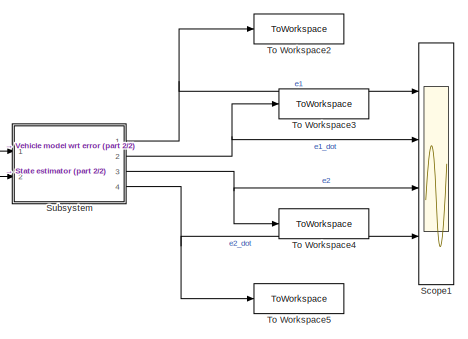
[diagram: root canvas - part 1/2, middle right region]
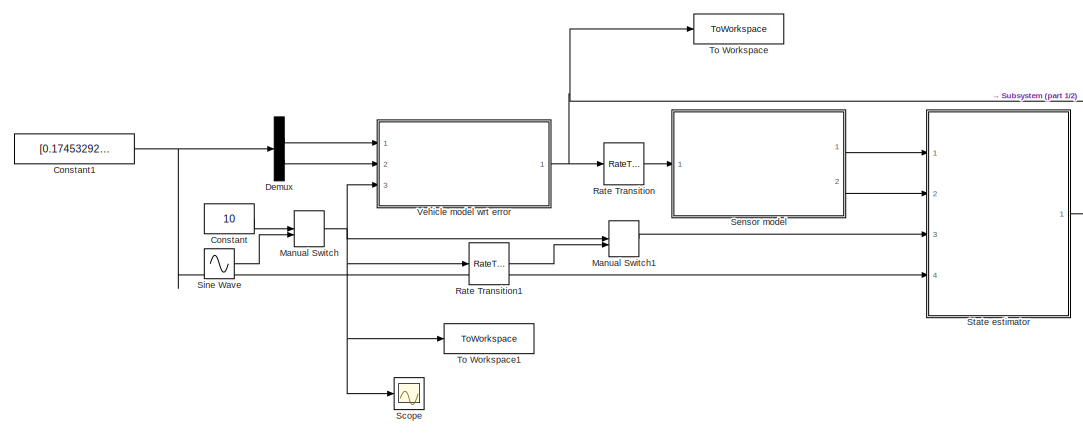
[diagram: root canvas - part 2/2, center side, full height]
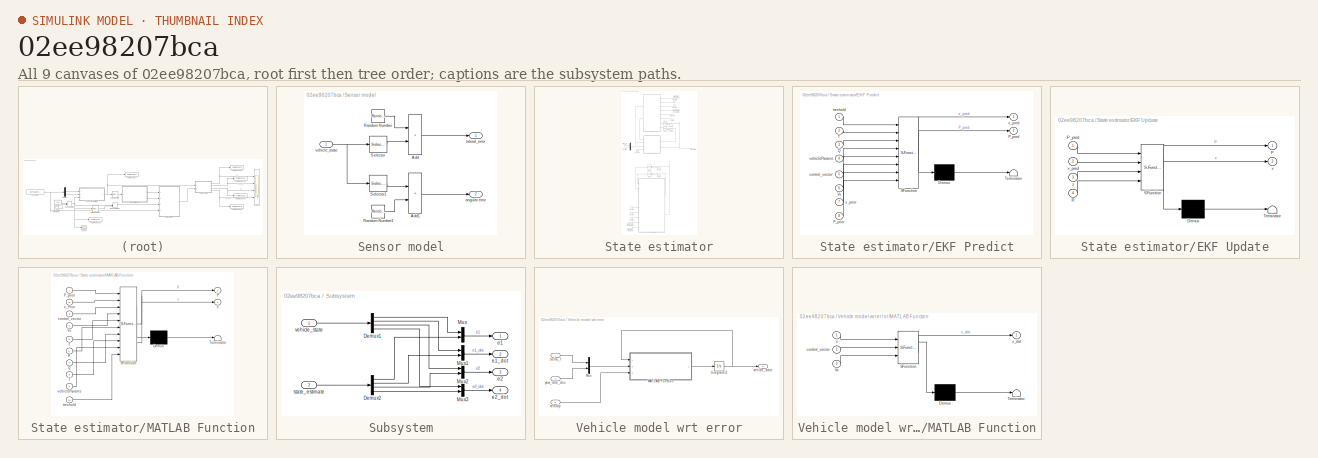
[diagram: thumbnail index - all 9 canvases of the model, root first then tree order]
MODEL slx_02ee98207bca
KIND model
CONFIG AbsTol = auto
CONFIG EnableMultiTasking = off
CONFIG FixedStep = auto
CONFIG MaxStep = auto
CONFIG MinStep = auto
CONFIG RelTol = 1e-3
CONFIG SampleTimeConstraint = Unconstrained
CONFIG SolverName = VariableStepAuto
CONFIG StartTime = 0.0
CONFIG StopTime = 5
BLOCK [Constant] Constant
  Value = 10
BLOCK [Constant] Constant1
  Value = [0.1745329252; 1]
BLOCK [Demux] Demux
  Outputs = 2
  Ports = [1, 2]
BLOCK [ManualSwitch] Manual Switch
BLOCK [ManualSwitch] Manual Switch1
BLOCK [RateTransition] Rate Transition
  OutPortSampleTime = T
BLOCK [RateTransition] Rate Transition1
  OutPortSampleTime = T
BLOCK [Scope] Scope
  Floating = off
  NumInputPorts = 1
  Ports = [1]
  ScopeSpecificationString = Simulink.scopes.TimeScopeBlockCfg('CurrentConfiguration', extmgr.ConfigurationSet(extmgr.Configuration('Core','General UI',true),extmgr.Configuration('Core','Source UI',true),extmgr.Configuration('Sources','WiredSimulink',true,'DataLoggingVariableName','ScopeData1'),extmgr.Configuration('Visuals','Time Domain',true,'SerializedDisplays',{struct('MinYLimReal','0.009','MaxYLimReal','0.011','YLabelRea...<+1408ch>
BLOCK [Scope] Scope1
  Floating = off
  NumInputPorts = 4
  Ports = [4]
  ScopeSpecificationString = Simulink.scopes.TimeScopeBlockCfg('CurrentConfiguration', extmgr.ConfigurationSet(extmgr.Configuration('Core','General UI',true),extmgr.Configuration('Core','Source UI',true),extmgr.Configuration('Sources','WiredSimulink',true,'DataLoggingVariableName','ScopeData1'),extmgr.Configuration('Visuals','Time Domain',true,'SerializedDisplays',{struct('MinYLimReal','-1.35053','MaxYLimReal','0.21478','YLab...<+3512ch>
BLOCK [SubSystem] Sensor model
  Ports = [1, 2]
  RequestExecContextInheritance = off
BLOCK [Sum] Sensor model/Add
  IconShape = rectangular
  Ports = [2, 1]
BLOCK [Sum] Sensor model/Add1
  IconShape = rectangular
  Ports = [2, 1]
BLOCK [RandomNumber] Sensor model/Random Number
  SampleTime = T
  Variance = e1_noise_std^2
BLOCK [RandomNumber] Sensor model/Random Number1
  SampleTime = T
  Seed = 1
  Variance = e2_noise_std^2
BLOCK [Selector] Sensor model/Selector
  IndexOptions = Index vector (dialog)
  Indices = 1
  InputPortWidth = 4
  OutputSizes = 1
  Ports = [1, 1]
BLOCK [Selector] Sensor model/Selector1
  IndexOptions = Index vector (dialog)
  Indices = 3
  InputPortWidth = 4
  OutputSizes = 1
  Ports = [1, 1]
BLOCK [Outport] Sensor model/angular error
  Port = 2
BLOCK [Outport] Sensor model/lateral_error
BLOCK [Inport] Sensor model/vehicle_state
BLOCK [Sin] Sine Wave
  Amplitude = 0.5
  Bias = 1.5
  Frequency = 3
  Phase = -pi/2
  Ports = [0, 1]
  SampleTime = 0
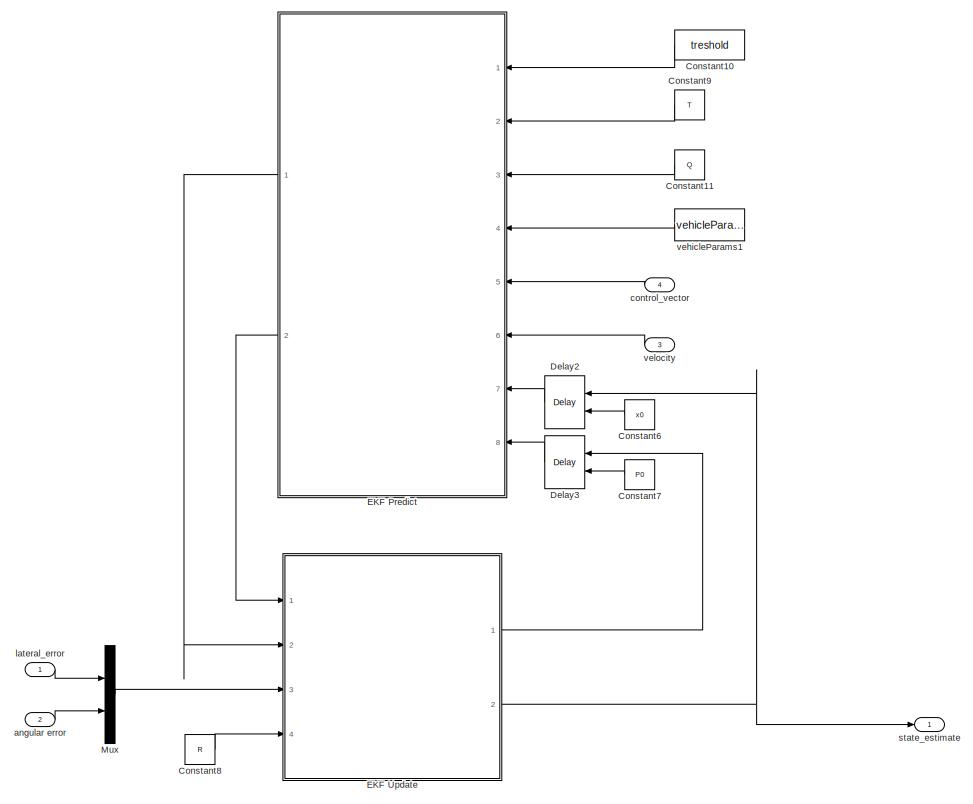
[diagram: State estimator - part 1/2, full width, top band]
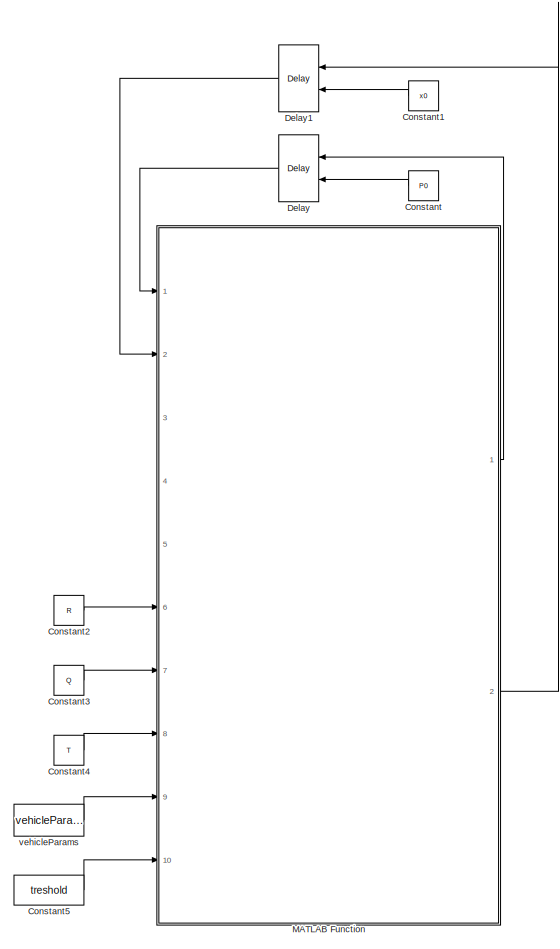
[diagram: State estimator - part 2/2, bottom center region]
BLOCK [SubSystem] State estimator
  Ports = [4, 1]
  RequestExecContextInheritance = off
BLOCK [Constant] State estimator/Constant
  Commented = on
  Value = P0
BLOCK [Constant] State estimator/Constant1
  Commented = on
  Value = x0
BLOCK [Constant] State estimator/Constant10
  Value = treshold
BLOCK [Constant] State estimator/Constant11
  Value = Q
BLOCK [Constant] State estimator/Constant2
  Commented = on
  Value = R
BLOCK [Constant] State estimator/Constant3
  Commented = on
  Value = Q
BLOCK [Constant] State estimator/Constant4
  Commented = on
  Value = T
BLOCK [Constant] State estimator/Constant5
  Commented = on
  Value = treshold
BLOCK [Constant] State estimator/Constant6
  Value = x0
BLOCK [Constant] State estimator/Constant7
  Value = P0
BLOCK [Constant] State estimator/Constant8
  Value = R
BLOCK [Constant] State estimator/Constant9
  Value = T
BLOCK [Delay] State estimator/Delay
  Commented = on
  DelayLength = 1
  InitialConditionSource = Input port
  InputPortMap = u0,p4
  Ports = [2, 1]
BLOCK [Delay] State estimator/Delay1
  Commented = on
  DelayLength = 1
  InitialConditionSource = Input port
  InputPortMap = u0,p4
  Ports = [2, 1]
BLOCK [Delay] State estimator/Delay2
  DelayLength = 1
  InitialConditionSource = Input port
  InputPortMap = u0,p4
  Ports = [2, 1]
  SampleTime = T
BLOCK [Delay] State estimator/Delay3
  DelayLength = 1
  InitialConditionSource = Input port
  InputPortMap = u0,p4
  Ports = [2, 1]
  SampleTime = T
BLOCK [SubSystem] State estimator/EKF Predict
  ErrorFcn = Stateflow.Translate.translate
  PermitHierarchicalResolution = ExplicitOnly
  Ports = [8, 2]
  RequestExecContextInheritance = off
  SFBlockType = MATLAB Function
  TreatAsAtomicUnit = on
BLOCK [Demux] State estimator/EKF Predict/ Demux 
  Outputs = 1
  Ports = [1, 1]
BLOCK [S-Function] State estimator/EKF Predict/ SFunction 
  EnableBusSupport = on
  FunctionName = sf_sfun
  PortCounts = [8 3]
  Ports = [8, 3]
  SFcnIsStateOwnerBlock = off
  SFunctionDeploymentMode = off
  Tag = Stateflow S-Function 1
BLOCK [Terminator] State estimator/EKF Predict/ Terminator 
BLOCK [Outport] State estimator/EKF Predict/P_pred
  Port = 2
BLOCK [Inport] State estimator/EKF Predict/P_prior
  Port = 8
BLOCK [Inport] State estimator/EKF Predict/Q
  Port = 3
BLOCK [Inport] State estimator/EKF Predict/T
  Port = 2
BLOCK [Inport] State estimator/EKF Predict/Vx
  Port = 6
BLOCK [Inport] State estimator/EKF Predict/control_vector
  Port = 5
BLOCK [Inport] State estimator/EKF Predict/treshold
BLOCK [Inport] State estimator/EKF Predict/vehicleParams
  Port = 4
BLOCK [Outport] State estimator/EKF Predict/x_pred
BLOCK [Inport] State estimator/EKF Predict/x_prior
  Port = 7
BLOCK [SubSystem] State estimator/EKF Update
  ErrorFcn = Stateflow.Translate.translate
  PermitHierarchicalResolution = ExplicitOnly
  Ports = [4, 2]
  RequestExecContextInheritance = off
  SFBlockType = MATLAB Function
  TreatAsAtomicUnit = on
BLOCK [Demux] State estimator/EKF Update/ Demux 
  Outputs = 1
  Ports = [1, 1]
BLOCK [S-Function] State estimator/EKF Update/ SFunction 
  EnableBusSupport = on
  FunctionName = sf_sfun
  PortCounts = [4 3]
  Ports = [4, 3]
  SFcnIsStateOwnerBlock = off
  SFunctionDeploymentMode = off
  Tag = Stateflow S-Function 2
BLOCK [Terminator] State estimator/EKF Update/ Terminator 
BLOCK [Outport] State estimator/EKF Update/P
BLOCK [Inport] State estimator/EKF Update/P_pred
BLOCK [Inport] State estimator/EKF Update/R
  Port = 4
BLOCK [Outport] State estimator/EKF Update/x
  Port = 2
BLOCK [Inport] State estimator/EKF Update/x_pred
  Port = 2
BLOCK [Inport] State estimator/EKF Update/z
  Port = 3
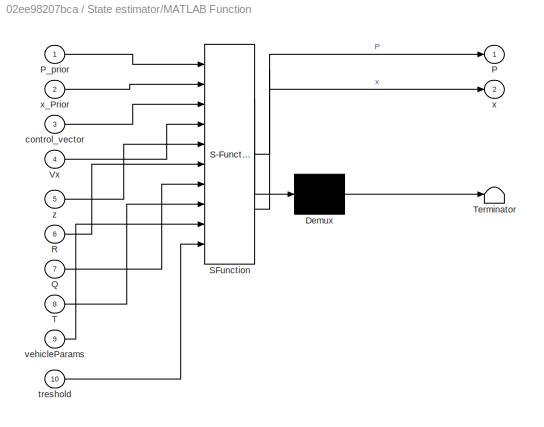
BLOCK [SubSystem] State estimator/MATLAB Function
  Commented = on
  ErrorFcn = Stateflow.Translate.translate
  PermitHierarchicalResolution = ExplicitOnly
  Ports = [10, 2]
  RequestExecContextInheritance = off
  SFBlockType = MATLAB Function
  TreatAsAtomicUnit = on
BLOCK [Demux] State estimator/MATLAB Function/ Demux 
  Outputs = 1
  Ports = [1, 1]
BLOCK [S-Function] State estimator/MATLAB Function/ SFunction 
  EnableBusSupport = on
  FunctionName = sf_sfun
  PortCounts = [10 3]
  Ports = [10, 3]
  SFcnIsStateOwnerBlock = off
  SFunctionDeploymentMode = off
  Tag = Stateflow S-Function 5
BLOCK [Terminator] State estimator/MATLAB Function/ Terminator 
BLOCK [Outport] State estimator/MATLAB Function/P
BLOCK [Inport] State estimator/MATLAB Function/P_prior
BLOCK [Inport] State estimator/MATLAB Function/Q
  Port = 7
BLOCK [Inport] State estimator/MATLAB Function/R
  Port = 6
BLOCK [Inport] State estimator/MATLAB Function/T
  Port = 8
BLOCK [Inport] State estimator/MATLAB Function/Vx
  Port = 4
BLOCK [Inport] State estimator/MATLAB Function/control_vector
  Port = 3
BLOCK [Inport] State estimator/MATLAB Function/treshold
  Port = 10
BLOCK [Inport] State estimator/MATLAB Function/vehicleParams
  Port = 9
BLOCK [Outport] State estimator/MATLAB Function/x
  Port = 2
BLOCK [Inport] State estimator/MATLAB Function/x_Prior
  Port = 2
BLOCK [Inport] State estimator/MATLAB Function/z
  Port = 5
BLOCK [Mux] State estimator/Mux
  DisplayOption = bar
  Inputs = 2
  Ports = [2, 1]
BLOCK [Inport] State estimator/angular error
  Port = 2
BLOCK [Inport] State estimator/control_vector
  Port = 4
BLOCK [Inport] State estimator/lateral_error
BLOCK [Outport] State estimator/state_estimate
BLOCK [Constant] State estimator/vehicleParams
  Commented = on
  OutDataTypeStr = Bus: vehicleParamsBus
  Value = vehicleParams
BLOCK [Constant] State estimator/vehicleParams1
  OutDataTypeStr = Bus: vehicleParamsBus
  Value = vehicleParams
BLOCK [Inport] State estimator/velocity
  Port = 3
BLOCK [SubSystem] Subsystem
  Ports = [2, 4]
  RequestExecContextInheritance = off
BLOCK [Demux] Subsystem/Demux1
  Ports = [1, 4]
BLOCK [Demux] Subsystem/Demux2
  Ports = [1, 4]
BLOCK [Mux] Subsystem/Mux
  DisplayOption = bar
  Inputs = 2
  Ports = [2, 1]
BLOCK [Mux] Subsystem/Mux1
  DisplayOption = bar
  Inputs = 2
  Ports = [2, 1]
BLOCK [Mux] Subsystem/Mux2
  DisplayOption = bar
  Inputs = 2
  Ports = [2, 1]
BLOCK [Mux] Subsystem/Mux3
  DisplayOption = bar
  Inputs = 2
  Ports = [2, 1]
BLOCK [Outport] Subsystem/e1
BLOCK [Outport] Subsystem/e1_dot
  Port = 2
BLOCK [Outport] Subsystem/e2
  Port = 3
BLOCK [Outport] Subsystem/e2_dot
  Port = 4
BLOCK [Inport] Subsystem/state_estimate
  Port = 2
BLOCK [Inport] Subsystem/vehicle_state
BLOCK [ToWorkspace] To Workspace
  FixptAsFi = on
  MaxDataPoints = inf
  Ports = [1]
  SampleTime = -1
  SaveFormat = Timeseries
  VariableName = continous
BLOCK [ToWorkspace] To Workspace1
  FixptAsFi = on
  MaxDataPoints = inf
  Ports = [1]
  SampleTime = -1
  SaveFormat = Timeseries
  VariableName = Vx
BLOCK [ToWorkspace] To Workspace2
  FixptAsFi = on
  MaxDataPoints = inf
  Ports = [1]
  SampleTime = -1
  SaveFormat = Timeseries
  VariableName = e1
BLOCK [ToWorkspace] To Workspace3
  FixptAsFi = on
  MaxDataPoints = inf
  Ports = [1]
  SampleTime = -1
  SaveFormat = Timeseries
  VariableName = e1_dot
BLOCK [ToWorkspace] To Workspace4
  FixptAsFi = on
  MaxDataPoints = inf
  Ports = [1]
  SampleTime = -1
  SaveFormat = Timeseries
  VariableName = e2
BLOCK [ToWorkspace] To Workspace5
  FixptAsFi = on
  MaxDataPoints = inf
  Ports = [1]
  SampleTime = -1
  SaveFormat = Timeseries
  VariableName = e2_dot
BLOCK [SubSystem] Vehicle model wrt error
  Ports = [3, 1]
  RequestExecContextInheritance = off
BLOCK [Integrator] Vehicle model wrt error/Integrator1
  Ports = [1, 1]
BLOCK [SubSystem] Vehicle model wrt error/MATLAB Function
  ErrorFcn = Stateflow.Translate.translate
  PermitHierarchicalResolution = ExplicitOnly
  Ports = [3, 1]
  RequestExecContextInheritance = off
  SFBlockType = MATLAB Function
  TreatAsAtomicUnit = on
BLOCK [Demux] Vehicle model wrt error/MATLAB Function/ Demux 
  Outputs = 1
  Ports = [1, 1]
BLOCK [S-Function] Vehicle model wrt error/MATLAB Function/ SFunction 
  EnableBusSupport = on
  FunctionName = sf_sfun
  PortCounts = [3 2]
  Ports = [3, 2]
  SFcnIsStateOwnerBlock = off
  SFunctionDeploymentMode = off
  Tag = Stateflow S-Function 4
BLOCK [Terminator] Vehicle model wrt error/MATLAB Function/ Terminator 
BLOCK [Inport] Vehicle model wrt error/MATLAB Function/Vx
  Port = 3
BLOCK [Inport] Vehicle model wrt error/MATLAB Function/control_vector
  Port = 2
BLOCK [Inport] Vehicle model wrt error/MATLAB Function/x
BLOCK [Outport] Vehicle model wrt error/MATLAB Function/x_dot
BLOCK [Mux] Vehicle model wrt error/Mux
  DisplayOption = bar
  Inputs = 2
  Ports = [2, 1]
BLOCK [Inport] Vehicle model wrt error/delta_f
BLOCK [Outport] Vehicle model wrt error/vehicle_state
BLOCK [Inport] Vehicle model wrt error/velocity
  Port = 3
BLOCK [Inport] Vehicle model wrt error/yaw_rate_des
  Port = 2
NET Constant1:1 -> Demux:1, State estimator:4
LINE Constant:1 -> Manual Switch:1
LINE Demux:1 -> Vehicle model wrt error:1
LINE Demux:2 -> Vehicle model wrt error:2
LINE Manual Switch1:1 -> State estimator:3
NET Manual Switch:1 -> Manual Switch1:1, Rate Transition1:1, Scope:1, To Workspace1:1, Vehicle model wrt error:3
LINE Rate Transition1:1 -> Manual Switch1:2
LINE Rate Transition:1 -> Sensor model:1
LINE Sensor model/Add1:1 -> Sensor model/angular error:1
LINE Sensor model/Add:1 -> Sensor model/lateral_error:1
LINE Sensor model/Random Number1:1 -> Sensor model/Add1:2
LINE Sensor model/Random Number:1 -> Sensor model/Add:1
LINE Sensor model/Selector1:1 -> Sensor model/Add1:1
LINE Sensor model/Selector:1 -> Sensor model/Add:2
NET Sensor model/vehicle_state:1 -> Sensor model/Selector1:1, Sensor model/Selector:1
LINE Sensor model:1 -> State estimator:1
LINE Sensor model:2 -> State estimator:2
LINE Sine Wave:1 -> Manual Switch:2
LINE State estimator/Constant10:1 -> State estimator/EKF Predict:1
LINE State estimator/Constant11:1 -> State estimator/EKF Predict:3
LINE State estimator/Constant1:1 -> State estimator/Delay1:2
LINE State estimator/Constant2:1 -> State estimator/MATLAB Function:6
LINE State estimator/Constant3:1 -> State estimator/MATLAB Function:7
LINE State estimator/Constant4:1 -> State estimator/MATLAB Function:8
LINE State estimator/Constant5:1 -> State estimator/MATLAB Function:10
LINE State estimator/Constant6:1 -> State estimator/Delay2:2
LINE State estimator/Constant7:1 -> State estimator/Delay3:2
LINE State estimator/Constant8:1 -> State estimator/EKF Update:4
LINE State estimator/Constant9:1 -> State estimator/EKF Predict:2
LINE State estimator/Constant:1 -> State estimator/Delay:2
LINE State estimator/Delay1:1 -> State estimator/MATLAB Function:2
LINE State estimator/Delay2:1 -> State estimator/EKF Predict:7
LINE State estimator/Delay3:1 -> State estimator/EKF Predict:8
LINE State estimator/Delay:1 -> State estimator/MATLAB Function:1
LINE State estimator/EKF Predict:1 -> State estimator/EKF Update:2
LINE State estimator/EKF Predict:2 -> State estimator/EKF Update:1
LINE State estimator/EKF Update:1 -> State estimator/Delay3:1
NET State estimator/EKF Update:2 -> State estimator/Delay2:1, State estimator/state_estimate:1
LINE State estimator/MATLAB Function:1 -> State estimator/Delay:1
LINE State estimator/MATLAB Function:2 -> State estimator/Delay1:1
LINE State estimator/Mux:1 -> State estimator/EKF Update:3
LINE State estimator/angular error:1 -> State estimator/Mux:2
LINE State estimator/control_vector:1 -> State estimator/EKF Predict:5
LINE State estimator/lateral_error:1 -> State estimator/Mux:1
LINE State estimator/vehicleParams1:1 -> State estimator/EKF Predict:4
LINE State estimator/vehicleParams:1 -> State estimator/MATLAB Function:9
LINE State estimator/velocity:1 -> State estimator/EKF Predict:6
LINE State estimator:1 -> Subsystem:2
LINE Subsystem/Demux1:1 -> Subsystem/Mux:1
LINE Subsystem/Demux1:2 -> Subsystem/Mux1:1
LINE Subsystem/Demux1:3 -> Subsystem/Mux2:1
LINE Subsystem/Demux1:4 -> Subsystem/Mux3:1
LINE Subsystem/Demux2:1 -> Subsystem/Mux:2
LINE Subsystem/Demux2:2 -> Subsystem/Mux1:2
LINE Subsystem/Demux2:3 -> Subsystem/Mux2:2
LINE Subsystem/Demux2:4 -> Subsystem/Mux3:2
LINE Subsystem/Mux1:1 -> Subsystem/e1_dot:1
LINE Subsystem/Mux2:1 -> Subsystem/e2:1
LINE Subsystem/Mux3:1 -> Subsystem/e2_dot:1
LINE Subsystem/Mux:1 -> Subsystem/e1:1
LINE Subsystem/state_estimate:1 -> Subsystem/Demux2:1
LINE Subsystem/vehicle_state:1 -> Subsystem/Demux1:1
NET Subsystem:1 -> Scope1:1, To Workspace2:1
NET Subsystem:2 -> Scope1:2, To Workspace3:1
NET Subsystem:3 -> Scope1:3, To Workspace4:1
NET Subsystem:4 -> Scope1:4, To Workspace5:1
NET Vehicle model wrt error/Integrator1:1 -> Vehicle model wrt error/MATLAB Function:1, Vehicle model wrt error/vehicle_state:1
LINE Vehicle model wrt error/MATLAB Function:1 -> Vehicle model wrt error/Integrator1:1
LINE Vehicle model wrt error/Mux:1 -> Vehicle model wrt error/MATLAB Function:2
LINE Vehicle model wrt error/delta_f:1 -> Vehicle model wrt error/Mux:1
LINE Vehicle model wrt error/velocity:1 -> Vehicle model wrt error/MATLAB Function:3
LINE Vehicle model wrt error/yaw_rate_des:1 -> Vehicle model wrt error/Mux:2
NET Vehicle model wrt error:1 -> Rate Transition:1, Subsystem:1, To Workspace:1
note: NET lines group one-source signal fan-out (src -> all destinations, sorted); 1:1 wires keep LINE
CHART State estimator/EKF Predict states=1 transitions=1
  STATE_LABEL 'eML_blk_kernel()'
  STATE_LABEL 'SCRIPT:\nfunction [x_pred, P_pred] = ekfPredict(treshold ,T, Q, vehicleParams, control_vector, Vx, x_prior, P_prior)\n\n    % Parameters\n    Cf = vehicleParams.Cf;\n    Cr = vehicleParams.Cr;\n    lf = vehicleParams.lf;\n    lr = vehicleParams.lr;\n    m  = vehicleParams.m;\n    Iz = vehicleParams.Iz;\n\n    % State-space model elements\n    P1 = -((2*Cf + 2*Cr)/(m * Vx));\n    P2 = (2*Cf + 2*Cr) / m;\n    P3 ...<+2033ch>'
CHART State estimator/EKF Update states=1 transitions=1
  STATE_LABEL 'eML_blk_kernel()'
  STATE_LABEL "SCRIPT:\nfunction [P, x] = ekfUpdate(P_pred, x_pred, z, R)\n\n    % Update\n    % Measurement function (example: measuring only position states)\n    h_x = [x_pred(1); x_pred(3)];\n\n    % Calculate Jacobian matrix of h with respect to state\n    H = [ 1, 0, 0, 0;\n          0, 0, 1, 0];\n\n    % Measurement residual\n    y = z - h_x;\n\n    % Innovation covariance\n    S = H * P_pred * H' + R;\n\n    % Optimal Ka...<+176ch>"
CHART Vehicle model wrt error/MATLAB Function states=1 transitions=1
  STATE_LABEL 'eML_blk_kernel()'
  STATE_LABEL 'SCRIPT:\nfunction x_dot = countinous_model(x, control_vector, Vx)\n\n    % Parameters\n    Cf=80000;\n    Cr=80000;\n    lf=1.4;\n    lr=1.8;\n    m=1500;\n    Iz=1200;\n\n    % Elements\n    P1 = -((2*Cf+2*Cr)/(m*Vx));\n    P2 = (2*Cf+2*Cr)/m;\n    P3 = (-2*Cf*lf+2*Cr*lr)/(m*Vx);\n    P4 = -((2*Cf*lf-2*Cr*lr)/(Iz*Vx));\n    P5 = (2*Cf*lf-2*Cr*lr)/Iz;\n    P6 = -((2*Cf*lf^2+2*Cr*lr^2)/(Iz*Vx));\n    P7 = (2*Cf)/m;\n...<+323ch>'
CHART State estimator/MATLAB Function states=1 transitions=1
  STATE_LABEL 'eML_blk_kernel()'
  STATE_LABEL 'SCRIPT:\nfunction [P, x] = EKF_predict_update(P_prior, x_Prior, control_vector, Vx, z, R, Q, T, vehicleParams, treshold)\n\n    % Parameters\n    Cf = vehicleParams.Cf;\n    Cr = vehicleParams.Cr;\n    lf = vehicleParams.lf;\n    lr = vehicleParams.lr;\n    m  = vehicleParams.m;\n    Iz = vehicleParams.Iz;\n\n    % State-space model elements\n    P1 = -((2*Cf + 2*Cr)/(m * Vx));\n    P2 = (2*Cf + 2*Cr) / m;\n   ...<+2709ch>'
CHART  states=0 transitions=0
CHART  states=0 transitions=0
CHART  states=0 transitions=0
CHART  states=0 transitions=0
